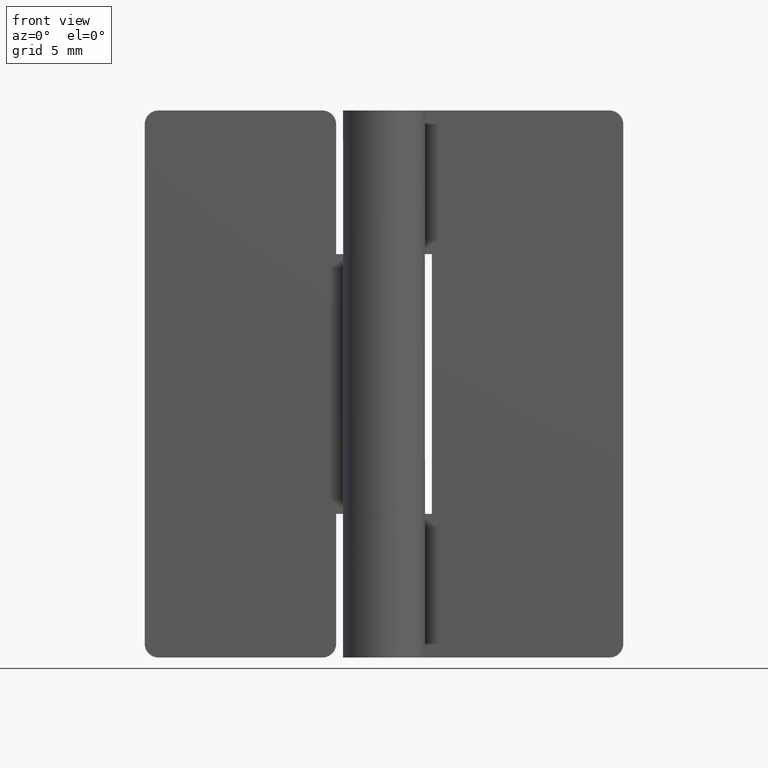
[diagram: clean part render]
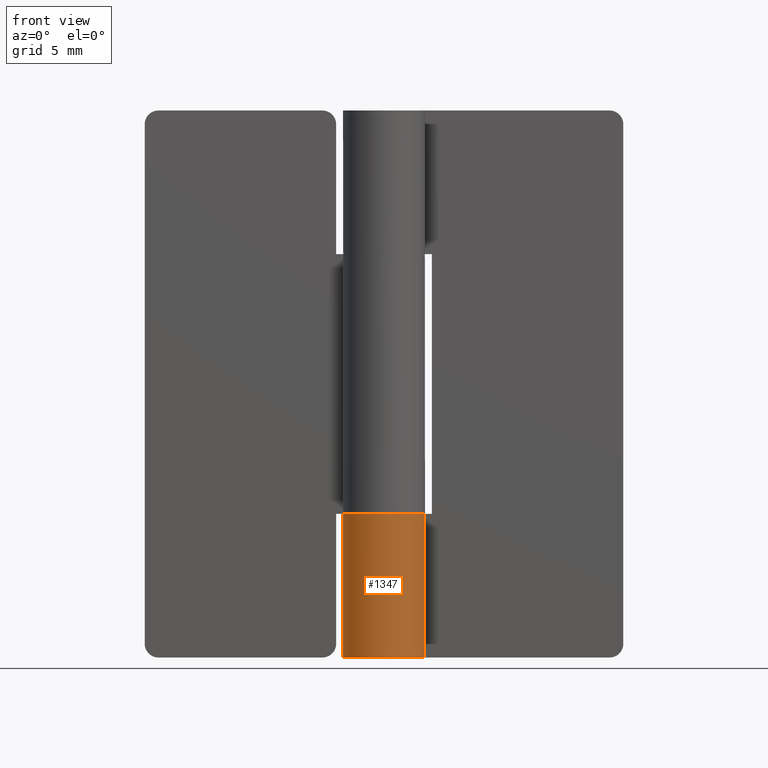
[diagram: same view with one face highlighted and labeled with its STEP entity id]
A machine part, front view. The second image highlights one B-rep face of the part: STEP entity #1347.
In plain terms, the highlighted face is a freeform B-spline surface patch.
Its self-contained STEP definition (entity closure, byte-faithful):
#838=CARTESIAN_POINT('',(2.626309197333780,1.450000000000000,10.500000000000000));
#839=VERTEX_POINT('',#838);
#840=CARTESIAN_POINT('',(0.0,3.0,10.500000000000000));
#841=VERTEX_POINT('',#840);
#842=CARTESIAN_POINT('',(2.626309197333780,1.450000000000000,10.500000000000000));
#843=CARTESIAN_POINT('',(3.733431584505770,-0.555272902071675,10.500000000000000));
#844=CARTESIAN_POINT('',(2.090650590886091,-2.151552952364324,10.500000000000000));
#845=CARTESIAN_POINT('',(0.447869597266413,-3.747833002656972,10.500000000000000));
#846=CARTESIAN_POINT('',(-1.524795068197689,-2.583602136552764,10.500000000000000));
#847=CARTESIAN_POINT('',(-3.497459733661792,-1.419371270448555,10.500000000000000));
#848=CARTESIAN_POINT('',(-2.894028888043301,0.790314364775722,10.500000000000000));
#849=CARTESIAN_POINT('',(-2.290598042424809,3.000000000000000,10.500000000000000));
#850=CARTESIAN_POINT('',(0.0,3.0,10.500000000000000));
#858=(BOUNDED_CURVE()B_SPLINE_CURVE(2,(#842,#843,#844,#845,#846,#847,#848,#849,#850),.UNSPECIFIED.,.F.,.U.)B_SPLINE_CURVE_WITH_KNOTS((3,2,2,2,3),(0.0,0.250000000000000,0.500000000000000,0.750000000000000,1.0),.UNSPECIFIED.)CURVE()GEOMETRIC_REPRESENTATION_ITEM()RATIONAL_B_SPLINE_CURVE((1.0,0.794807562115481,1.0,0.794807562115481,1.0,0.794807562115481,1.0,0.794807562115481,1.0))REPRESENTATION_ITEM(''));
#859=EDGE_CURVE('',#839,#841,#858,.T.);
#1014=CARTESIAN_POINT('',(0.0,3.0,0.0));
#1015=VERTEX_POINT('',#1014);
#1050=CARTESIAN_POINT('',(2.626309197333780,1.450000000000000,0.0));
#1051=VERTEX_POINT('',#1050);
#1057=CARTESIAN_POINT('',(2.626309197333780,1.450000000000000,0.0));
#1058=CARTESIAN_POINT('',(3.733431584505770,-0.555272902071675,0.0));
#1059=CARTESIAN_POINT('',(2.090650590886091,-2.151552952364324,0.0));
#1060=CARTESIAN_POINT('',(0.447869597266413,-3.747833002656972,0.0));
#1061=CARTESIAN_POINT('',(-1.524795068197689,-2.583602136552764,0.0));
#1062=CARTESIAN_POINT('',(-3.497459733661792,-1.419371270448555,0.0));
#1063=CARTESIAN_POINT('',(-2.894028888043301,0.790314364775722,0.0));
#1064=CARTESIAN_POINT('',(-2.290598042424809,3.000000000000000,0.0));
#1065=CARTESIAN_POINT('',(0.0,3.0,0.0));
#1073=(BOUNDED_CURVE()B_SPLINE_CURVE(2,(#1057,#1058,#1059,#1060,#1061,#1062,#1063,#1064,#1065),.UNSPECIFIED.,.F.,.U.)B_SPLINE_CURVE_WITH_KNOTS((3,2,2,2,3),(0.0,0.250000000000000,0.500000000000000,0.750000000000000,1.0),.UNSPECIFIED.)CURVE()GEOMETRIC_REPRESENTATION_ITEM()RATIONAL_B_SPLINE_CURVE((1.0,0.794807562115481,1.0,0.794807562115481,1.0,0.794807562115481,1.0,0.794807562115481,1.0))REPRESENTATION_ITEM(''));
#1074=EDGE_CURVE('',#1051,#1015,#1073,.T.);
#1180=CARTESIAN_POINT('',(2.626309197333780,1.450000000000000,10.500000000000000));
#1181=CARTESIAN_POINT('',(2.626309197333780,1.450000000000000,0.0));
#1182=QUASI_UNIFORM_CURVE('',1,(#1180,#1181),.UNSPECIFIED.,.F.,.U.);
#1183=EDGE_CURVE('',#839,#1051,#1182,.T.);
#1301=CARTESIAN_POINT('',(0.0,3.0,10.500000000000000));
#1302=CARTESIAN_POINT('',(0.0,3.0,0.0));
#1303=QUASI_UNIFORM_CURVE('',1,(#1301,#1302),.UNSPECIFIED.,.F.,.U.);
#1304=EDGE_CURVE('',#841,#1015,#1303,.T.);
#1319=CARTESIAN_POINT('',(0.083590388003215,2.998835215051582,10.762499999999999));
#1320=CARTESIAN_POINT('',(0.083590388003215,2.998835215051582,-0.269062500000000));
#1321=CARTESIAN_POINT('',(-3.597715494687123,3.101448985074057,10.762500000000003));
#1322=CARTESIAN_POINT('',(-3.597715494687123,3.101448985074057,-0.269062500000000));
#1323=CARTESIAN_POINT('',(-2.953784589413351,-0.524553714450863,10.762499999999999));
#1324=CARTESIAN_POINT('',(-2.953784589413351,-0.524553714450863,-0.269062500000000));
#1325=CARTESIAN_POINT('',(-2.309853684139579,-4.150556413975786,10.762500000000003));
#1326=CARTESIAN_POINT('',(-2.309853684139579,-4.150556413975786,-0.269062500000000));
#1327=CARTESIAN_POINT('',(1.111023909722692,-2.786687257663569,10.762499999999999));
#1328=CARTESIAN_POINT('',(1.111023909722692,-2.786687257663569,-0.269062500000000));
#1329=CARTESIAN_POINT('',(4.531901503584964,-1.422818101351353,10.762500000000003));
#1330=CARTESIAN_POINT('',(4.531901503584964,-1.422818101351353,-0.269062500000000));
#1331=CARTESIAN_POINT('',(2.504447473759407,1.651587978637567,10.762499999999999));
#1332=CARTESIAN_POINT('',(2.504447473759407,1.651587978637567,-0.269062500000000));
#1340=(BOUNDED_SURFACE()B_SPLINE_SURFACE(1,2,((#1319,#1321,#1323,#1325,#1327,#1329,#1331),(#1320,#1322,#1324,#1326,#1328,#1330,#1332)),.UNSPECIFIED.,.F.,.F.,.U.)B_SPLINE_SURFACE_WITH_KNOTS((2,2),(3,2,2,3),(0.0,11.031562500000000),(0.0,5.702297214197751,11.404594428395500,17.106891642593251),.UNSPECIFIED.)GEOMETRIC_REPRESENTATION_ITEM()RATIONAL_B_SPLINE_SURFACE(((1.0,0.631578351302498,1.0,0.631578351302498,1.0,0.631578351302498,1.0),(1.0,0.631578351302498,1.0,0.631578351302498,1.0,0.631578351302498,1.0)))REPRESENTATION_ITEM('')SURFACE());
#1341=ORIENTED_EDGE('',*,*,#859,.T.);
#1342=ORIENTED_EDGE('',*,*,#1304,.T.);
#1343=ORIENTED_EDGE('',*,*,#1074,.F.);
#1344=ORIENTED_EDGE('',*,*,#1183,.F.);
#1345=EDGE_LOOP('',(#1341,#1342,#1343,#1344));
#1346=FACE_OUTER_BOUND('',#1345,.T.);
#1347=ADVANCED_FACE('',(#1346),#1340,.T.);